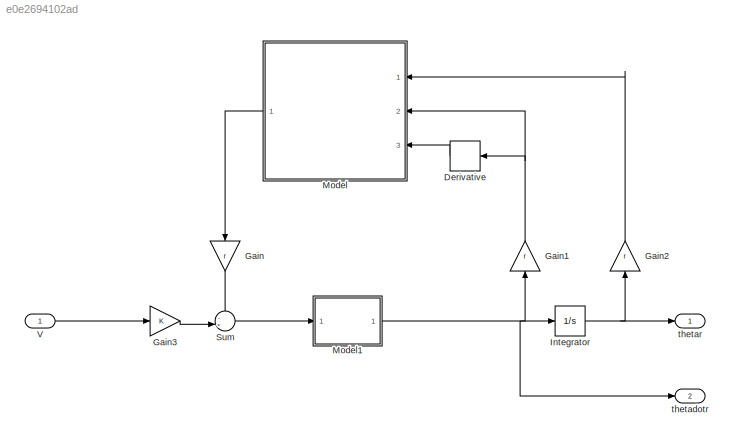
MODEL slx_e0e2694102ad
KIND model
CONFIG AbsTol = auto
CONFIG EnableMultiTasking = off
CONFIG FixedStep = auto
CONFIG MaxStep = auto
CONFIG MinStep = auto
CONFIG RelTol = 1e-3
CONFIG SampleTimeConstraint = Unconstrained
CONFIG SolverName = VariableStepAuto
CONFIG StartTime = 0.0
CONFIG StopTime = 10.0
BLOCK [Derivative] Derivative
  NameLocation = top
BLOCK [Gain] Gain
  Gain = r
  NameLocation = left
BLOCK [Gain] Gain1
  Gain = r
  NameLocation = right
BLOCK [Gain] Gain2
  Gain = r
  NameLocation = right
BLOCK [Gain] Gain3
  Gain = K
BLOCK [Integrator] Integrator
  Ports = [1, 1]
BLOCK [ModelReference] Model
  ModelNameDialog = perturbacao.slx
  ModelReferenceVersion = 1.6
  NameLocation = top
  Ports = [3, 1]
BLOCK [ModelReference] Model1
  ModelNameDialog = transf1.slx
  ModelReferenceVersion = 1.1
  Ports = [1, 1]
BLOCK [Sum] Sum
  Inputs = -+|
  Ports = [2, 1]
BLOCK [Inport] V
  PortDimensions = 3
BLOCK [Outport] thetadotr
  Port = 2
  PortDimensions = 3
  SignalName = dThr
BLOCK [Outport] thetar
  PortDimensions = 3
  SignalName = Thr
LINE Derivative:1 -> Model:3
NET Gain1:1 -> Derivative:1, Model:2
LINE Gain2:1 -> Model:1
LINE Gain3:1 -> Sum:2
LINE Gain:1 -> Sum:1
NET Integrator:1 -> Gain2:1, thetar:1
NET Model1:1 -> Gain1:1, Integrator:1, thetadotr:1
LINE Model:1 -> Gain:1
LINE Sum:1 -> Model1:1
LINE V:1 -> Gain3:1
note: NET lines group one-source signal fan-out (src -> all destinations, sorted); 1:1 wires keep LINE
